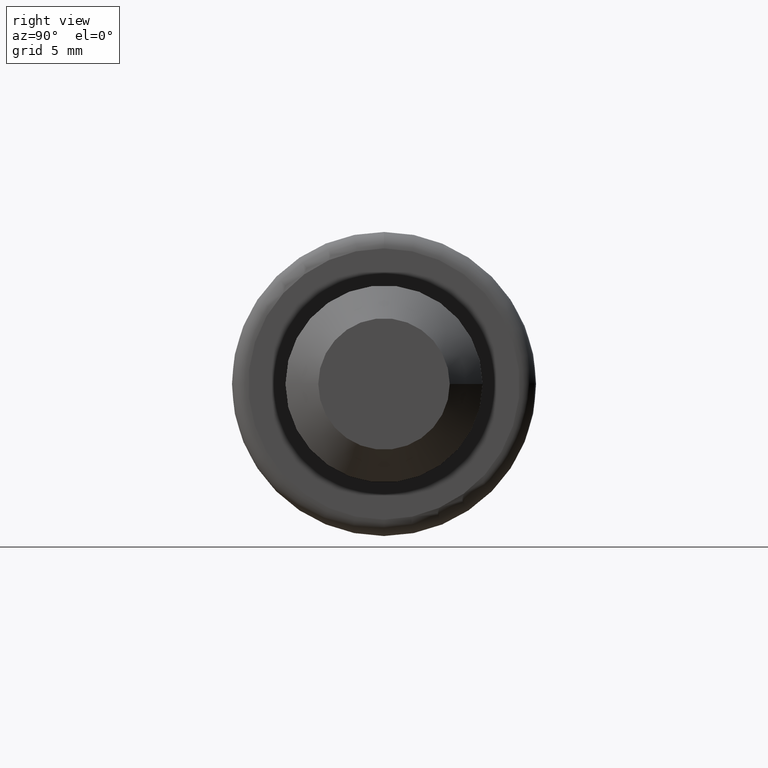
[diagram: clean part render]
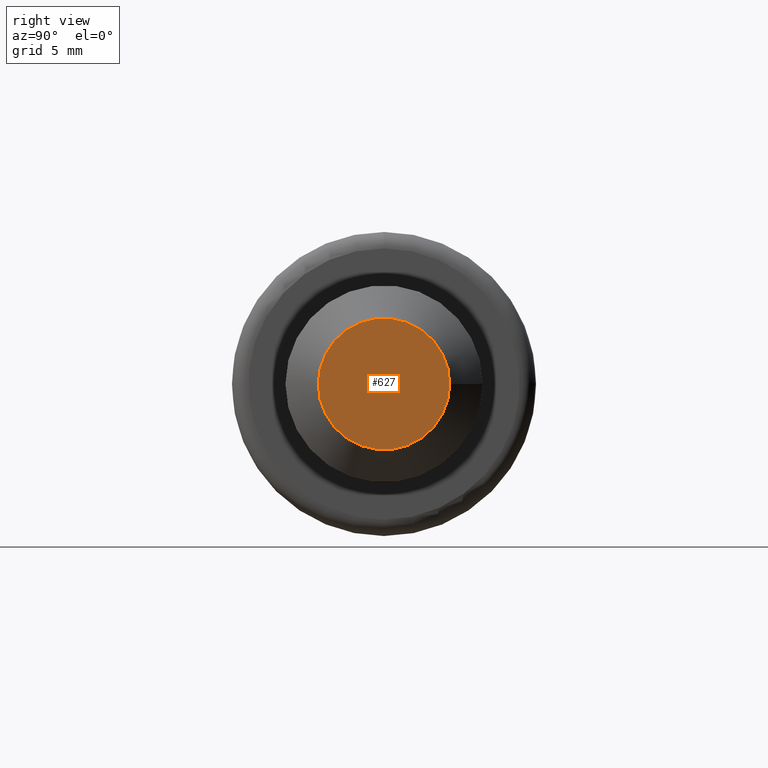
[diagram: same view with one face highlighted and labeled with its STEP entity id]
A machine part, right view. The second image highlights one B-rep face of the part: STEP entity #627.
In plain terms, the highlighted planar face has unit normal (1, 0, 0).
Its self-contained STEP definition (entity closure, byte-faithful):
#47=PLANE('',#702);
#78=FACE_OUTER_BOUND('',#113,.T.);
#113=EDGE_LOOP('',(#558));
#230=CIRCLE('',#697,4.00000000000001);
#294=VERTEX_POINT('',#1196);
#381=EDGE_CURVE('',#294,#294,#230,.T.);
#558=ORIENTED_EDGE('',*,*,#381,.F.);
#627=ADVANCED_FACE('',(#78),#47,.T.);
#697=AXIS2_PLACEMENT_3D('',#1197,#838,#839);
#702=AXIS2_PLACEMENT_3D('',#1207,#850,#851);
#838=DIRECTION('center_axis',(-1.,0.,0.));
#839=DIRECTION('ref_axis',(0.,-1.,0.));
#850=DIRECTION('center_axis',(1.,0.,0.));
#851=DIRECTION('ref_axis',(0.,0.,-1.));
#1196=CARTESIAN_POINT('',(30.,4.00000000000001,-4.89858719658942E-16));
#1197=CARTESIAN_POINT('Origin',(30.,0.,0.));
#1207=CARTESIAN_POINT('Origin',(30.,0.,0.));